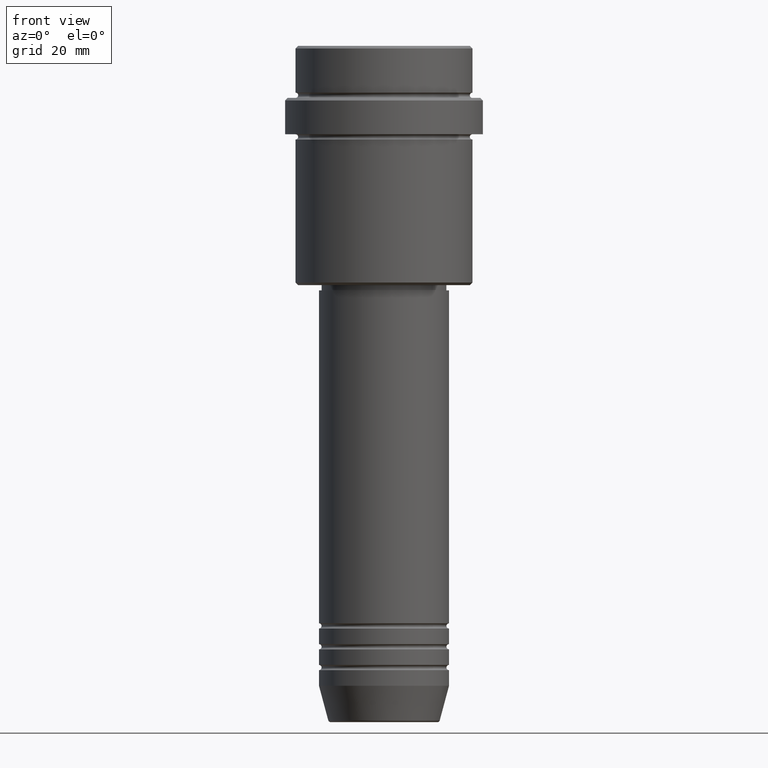
[diagram: clean part render]
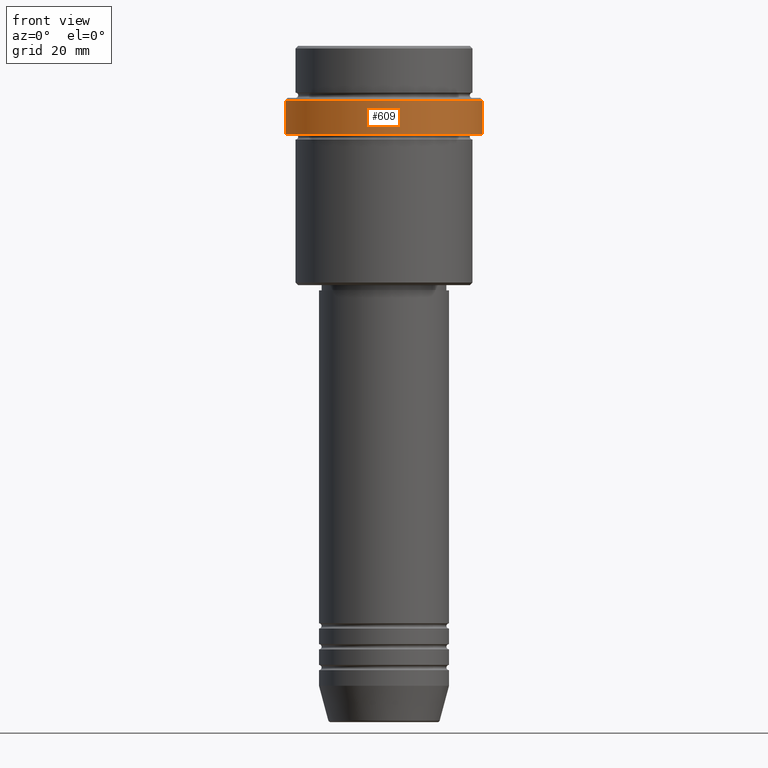
[diagram: same view with one face highlighted and labeled with its STEP entity id]
A machine part, front view. The second image highlights one B-rep face of the part: STEP entity #609.
In plain terms, the highlighted cylindrical surface (partial cylindrical patch) has radius 19 mm, axis along (-0, -0, 1).
Its self-contained STEP definition (entity closure, byte-faithful):
#52 = CARTESIAN_POINT ( 'NONE',  ( 0.000000000000000000, 0.000000000000000000, -17.00000000000000000 ) ) ;
#67 = AXIS2_PLACEMENT_3D ( 'NONE', #1094, #1416, #1281 ) ;
#74 = DIRECTION ( 'NONE',  ( 0.000000000000000000, 0.000000000000000000, -1.000000000000000000 ) ) ;
#100 = ORIENTED_EDGE ( 'NONE', *, *, #971, .T. ) ;
#112 = ORIENTED_EDGE ( 'NONE', *, *, #400, .T. ) ;
#145 = VERTEX_POINT ( 'NONE', #766 ) ;
#317 = CYLINDRICAL_SURFACE ( 'NONE', #67, 18.99999999999998579 ) ;
#357 = CARTESIAN_POINT ( 'NONE',  ( 18.99999999999998579, 0.000000000000000000, -17.00000000000000000 ) ) ;
#400 = EDGE_CURVE ( 'NONE', #1359, #145, #1238, .T. ) ;
#462 = EDGE_CURVE ( 'NONE', #852, #997, #1272, .T. ) ;
#517 = DIRECTION ( 'NONE',  ( -0.000000000000000000, -0.000000000000000000, 1.000000000000000000 ) ) ;
#537 = EDGE_CURVE ( 'NONE', #145, #997, #1176, .T. ) ;
#566 = AXIS2_PLACEMENT_3D ( 'NONE', #825, #74, #966 ) ;
#572 = DIRECTION ( 'NONE',  ( -0.000000000000000000, -0.000000000000000000, 1.000000000000000000 ) ) ;
#609 = ADVANCED_FACE ( 'NONE', ( #981 ), #317, .T. ) ;
#741 = ORIENTED_EDGE ( 'NONE', *, *, #462, .F. ) ;
#766 = CARTESIAN_POINT ( 'NONE',  ( 18.99999999999998579, 0.000000000000000000, -10.49999999999997158 ) ) ;
#825 = CARTESIAN_POINT ( 'NONE',  ( 0.000000000000000000, 0.000000000000000000, -10.49999999999997158 ) ) ;
#832 = DIRECTION ( 'NONE',  ( -0.000000000000000000, -0.000000000000000000, 1.000000000000000000 ) ) ;
#852 = VERTEX_POINT ( 'NONE', #1245 ) ;
#902 = ORIENTED_EDGE ( 'NONE', *, *, #537, .T. ) ;
#947 = EDGE_LOOP ( 'NONE', ( #741, #100, #112, #902 ) ) ;
#966 = DIRECTION ( 'NONE',  ( 1.000000000000000000, 0.000000000000000000, 0.000000000000000000 ) ) ;
#971 = EDGE_CURVE ( 'NONE', #852, #1359, #1000, .T. ) ;
#981 = FACE_OUTER_BOUND ( 'NONE', #947, .T. ) ;
#997 = VERTEX_POINT ( 'NONE', #1151 ) ;
#1000 = CIRCLE ( 'NONE', #1161, 18.99999999999998579 ) ;
#1042 = VECTOR ( 'NONE', #517, 1000.000000000000000 ) ;
#1094 = CARTESIAN_POINT ( 'NONE',  ( 0.000000000000000000, 0.000000000000000000, 0.000000000000000000 ) ) ;
#1124 = CARTESIAN_POINT ( 'NONE',  ( 18.99999999999998579, 0.000000000000000000, 0.000000000000000000 ) ) ;
#1151 = CARTESIAN_POINT ( 'NONE',  ( -18.99999999999998579, 2.326828918379969393E-15, -10.49999999999997158 ) ) ;
#1161 = AXIS2_PLACEMENT_3D ( 'NONE', #52, #832, #1260 ) ;
#1176 = CIRCLE ( 'NONE', #566, 18.99999999999998579 ) ;
#1238 = LINE ( 'NONE', #1124, #1253 ) ;
#1245 = CARTESIAN_POINT ( 'NONE',  ( -18.99999999999998579, 2.326828918379969393E-15, -17.00000000000000000 ) ) ;
#1253 = VECTOR ( 'NONE', #572, 1000.000000000000000 ) ;
#1260 = DIRECTION ( 'NONE',  ( 1.000000000000000000, 0.000000000000000000, 0.000000000000000000 ) ) ;
#1272 = LINE ( 'NONE', #1372, #1042 ) ;
#1281 = DIRECTION ( 'NONE',  ( 1.000000000000000000, 0.000000000000000000, 0.000000000000000000 ) ) ;
#1359 = VERTEX_POINT ( 'NONE', #357 ) ;
#1372 = CARTESIAN_POINT ( 'NONE',  ( -18.99999999999998579, 2.326828918379969393E-15, 0.000000000000000000 ) ) ;
#1416 = DIRECTION ( 'NONE',  ( -0.000000000000000000, -0.000000000000000000, 1.000000000000000000 ) ) ;